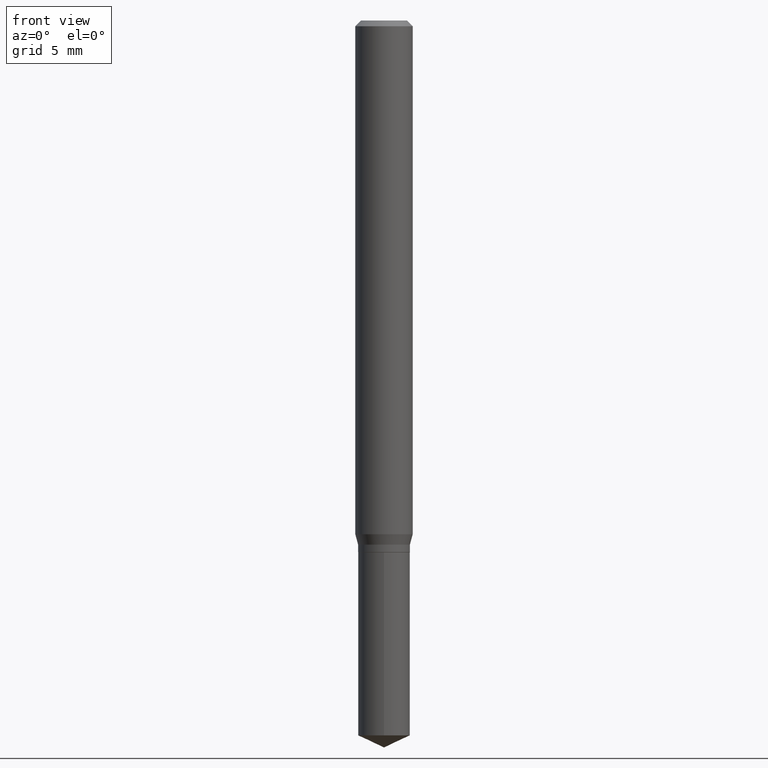
[diagram: clean part render]
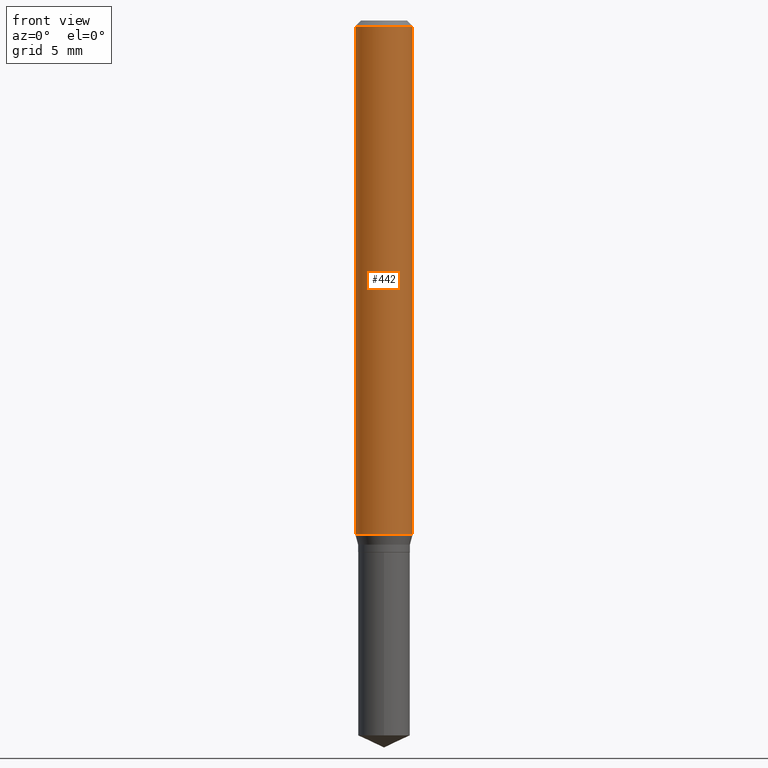
[diagram: same view with one face highlighted and labeled with its STEP entity id]
A machine part, front view. The second image highlights one B-rep face of the part: STEP entity #442.
In plain terms, the highlighted cylindrical surface (edge-blend (fillet) strip) has radius 1.4999 mm, axis along (-0, 0, 1).
Its self-contained STEP definition (entity closure, byte-faithful):
#5 = VECTOR ( 'NONE', #443, 39.37007874015748143 ) ;
#35 = CYLINDRICAL_SURFACE ( 'NONE', #156, 0.05905000000000006771 ) ;
#41 = CARTESIAN_POINT ( 'NONE',  ( 0.000000000000000000, 0.000000000000000000, 0.000000000000000000 ) ) ;
#42 = AXIS2_PLACEMENT_3D ( 'NONE', #113, #453, #151 ) ;
#53 = ORIENTED_EDGE ( 'NONE', *, *, #320, .F. ) ;
#74 = EDGE_CURVE ( 'NONE', #270, #146, #329, .T. ) ;
#86 = ORIENTED_EDGE ( 'NONE', *, *, #273, .F. ) ;
#99 = DIRECTION ( 'NONE',  ( -2.445468806185136597E-29, 3.491481338843145583E-15, 1.000000000000000000 ) ) ;
#102 = CARTESIAN_POINT ( 'NONE',  ( 0.05905000000000013016, -4.103633371283330921E-15, -1.057227310396857023 ) ) ;
#113 = CARTESIAN_POINT ( 'NONE',  ( 2.888098660104663766E-31, -4.123439461173779647E-17, -0.01181000000000007044 ) ) ;
#144 = VERTEX_POINT ( 'NONE', #317 ) ;
#145 = DIRECTION ( 'NONE',  ( -2.445468806185136877E-29, 3.491481338843145188E-15, 1.000000000000000000 ) ) ;
#146 = VERTEX_POINT ( 'NONE', #246 ) ;
#151 = DIRECTION ( 'NONE',  ( 1.000000000000000000, -6.982962677686266711E-15, 0.000000000000000000 ) ) ;
#156 = AXIS2_PLACEMENT_3D ( 'NONE', #41, #179, #332 ) ;
#163 = ORIENTED_EDGE ( 'NONE', *, *, #186, .T. ) ;
#179 = DIRECTION ( 'NONE',  ( -2.445468806185136597E-29, 3.491481338843145583E-15, 1.000000000000000000 ) ) ;
#180 = FACE_OUTER_BOUND ( 'NONE', #328, .T. ) ;
#186 = EDGE_CURVE ( 'NONE', #144, #270, #199, .T. ) ;
#191 = VECTOR ( 'NONE', #145, 39.37007874015748143 ) ;
#199 = CIRCLE ( 'NONE', #271, 0.05905000000000013016 ) ;
#205 = CARTESIAN_POINT ( 'NONE',  ( -0.05905000000000006771, 4.195754854663396409E-16, -2.904631170795525045E-30 ) ) ;
#216 = CARTESIAN_POINT ( 'NONE',  ( 2.585416408622524463E-29, -3.691289425165956001E-15, -1.057227310396857023 ) ) ;
#246 = CARTESIAN_POINT ( 'NONE',  ( 0.05904999999999999832, -4.535783407291118600E-16, -0.01181000000000007044 ) ) ;
#250 = CIRCLE ( 'NONE', #42, 0.05904999999999999832 ) ;
#270 = VERTEX_POINT ( 'NONE', #102 ) ;
#271 = AXIS2_PLACEMENT_3D ( 'NONE', #216, #99, #473 ) ;
#273 = EDGE_CURVE ( 'NONE', #144, #318, #280, .T. ) ;
#280 = LINE ( 'NONE', #205, #191 ) ;
#294 = CARTESIAN_POINT ( 'NONE',  ( 0.05905000000000006771, -4.123439461173745257E-16, 2.879382386107503723E-30 ) ) ;
#317 = CARTESIAN_POINT ( 'NONE',  ( -0.05905000000000013016, -3.271713939699615719E-15, -1.057227310396857023 ) ) ;
#318 = VERTEX_POINT ( 'NONE', #371 ) ;
#320 = EDGE_CURVE ( 'NONE', #318, #146, #250, .T. ) ;
#328 = EDGE_LOOP ( 'NONE', ( #86, #163, #433, #53 ) ) ;
#329 = LINE ( 'NONE', #294, #5 ) ;
#332 = DIRECTION ( 'NONE',  ( 1.000000000000000000, -6.982962677686266711E-15, 4.876176775795936353E-29 ) ) ;
#371 = CARTESIAN_POINT ( 'NONE',  ( -0.05904999999999999832, -1.446686424422506583E-15, -0.01181000000000007044 ) ) ;
#433 = ORIENTED_EDGE ( 'NONE', *, *, #74, .T. ) ;
#442 = ADVANCED_FACE ( 'NONE', ( #180 ), #35, .T. ) ;
#443 = DIRECTION ( 'NONE',  ( -2.445468806185136877E-29, 3.491481338843145188E-15, 1.000000000000000000 ) ) ;
#453 = DIRECTION ( 'NONE',  ( -2.445468806185136597E-29, 3.491481338843145583E-15, 1.000000000000000000 ) ) ;
#473 = DIRECTION ( 'NONE',  ( 1.000000000000000000, -6.982962677686265133E-15, 0.000000000000000000 ) ) ;